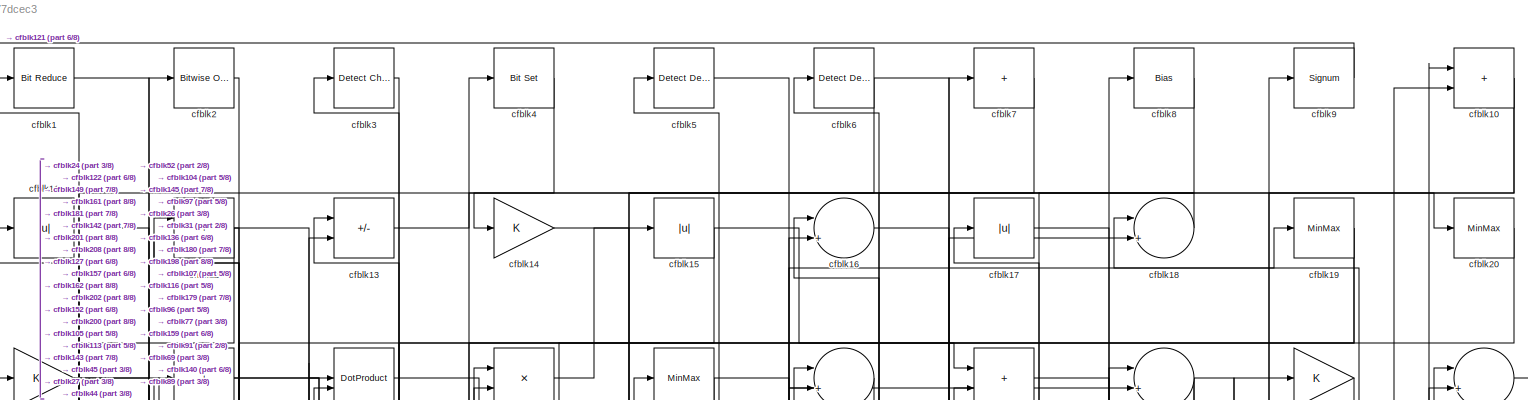
[diagram: root canvas - part 1/8, full width, top band]
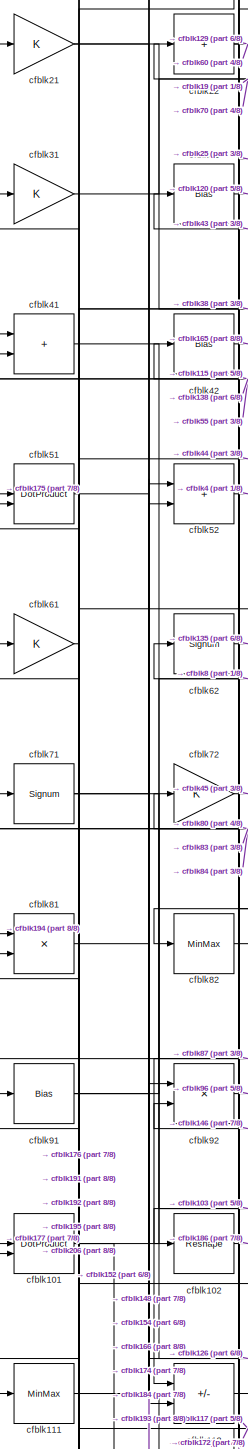
[diagram: root canvas - part 2/8, middle left region]
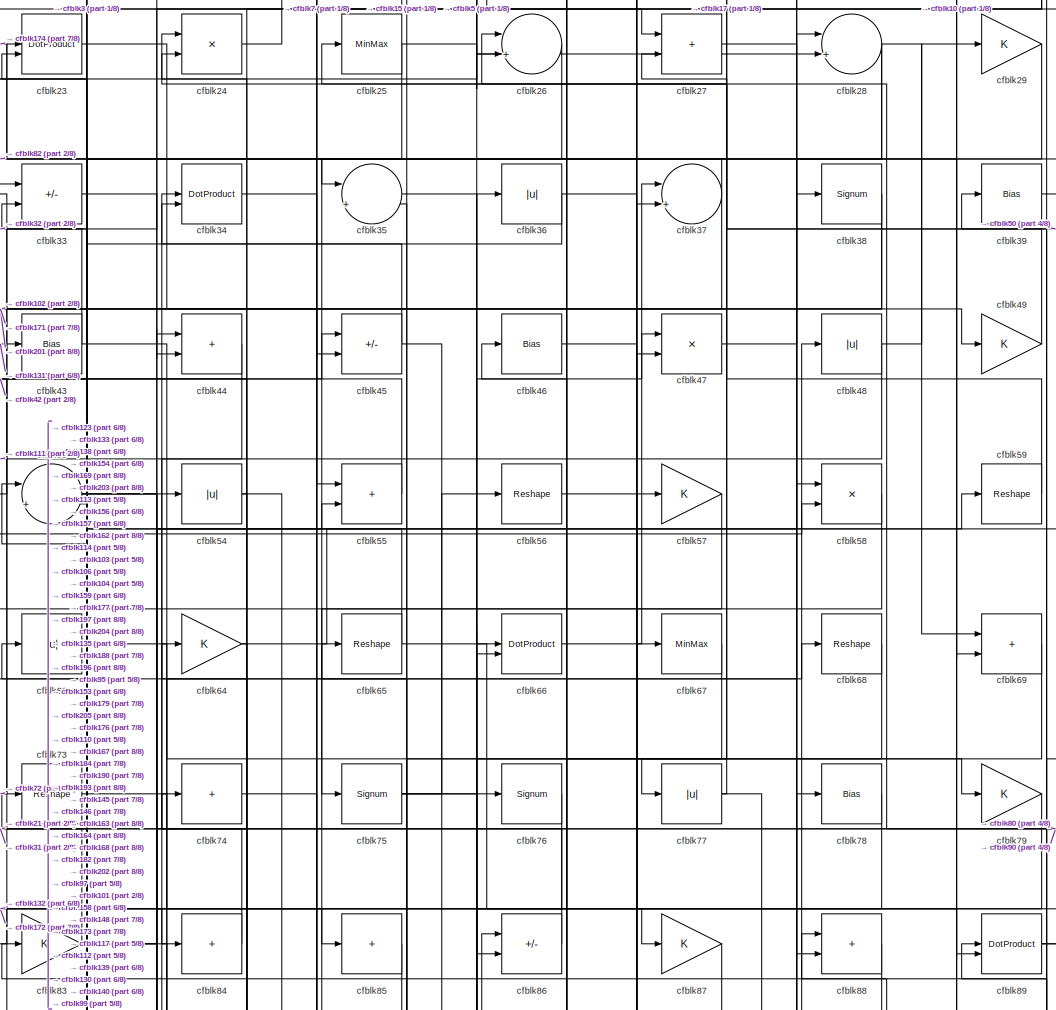
[diagram: root canvas - part 3/8, top center region]
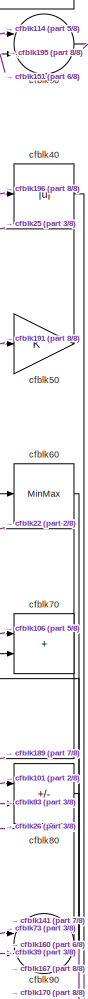
[diagram: root canvas - part 4/8, top right region]
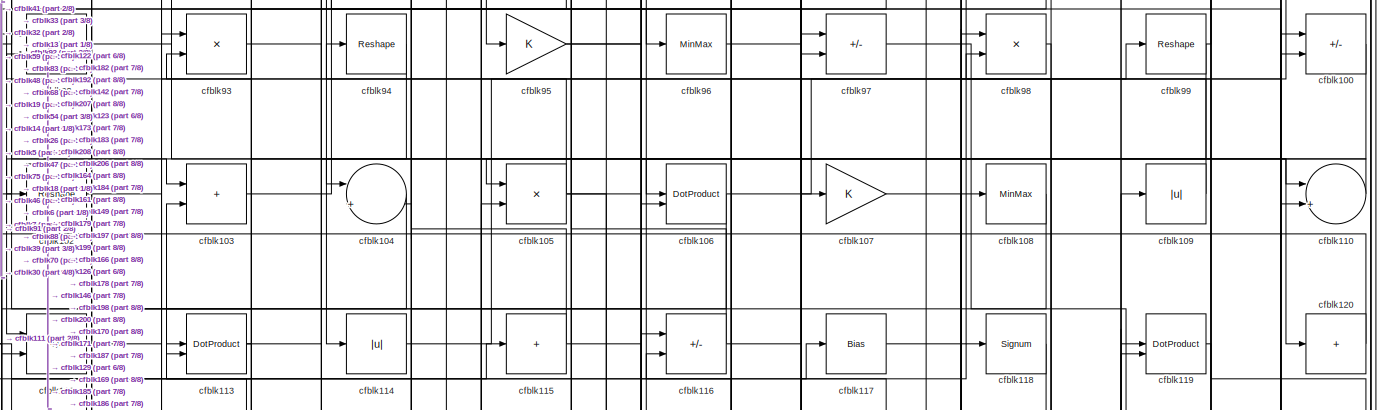
[diagram: root canvas - part 5/8, full width, middle band]
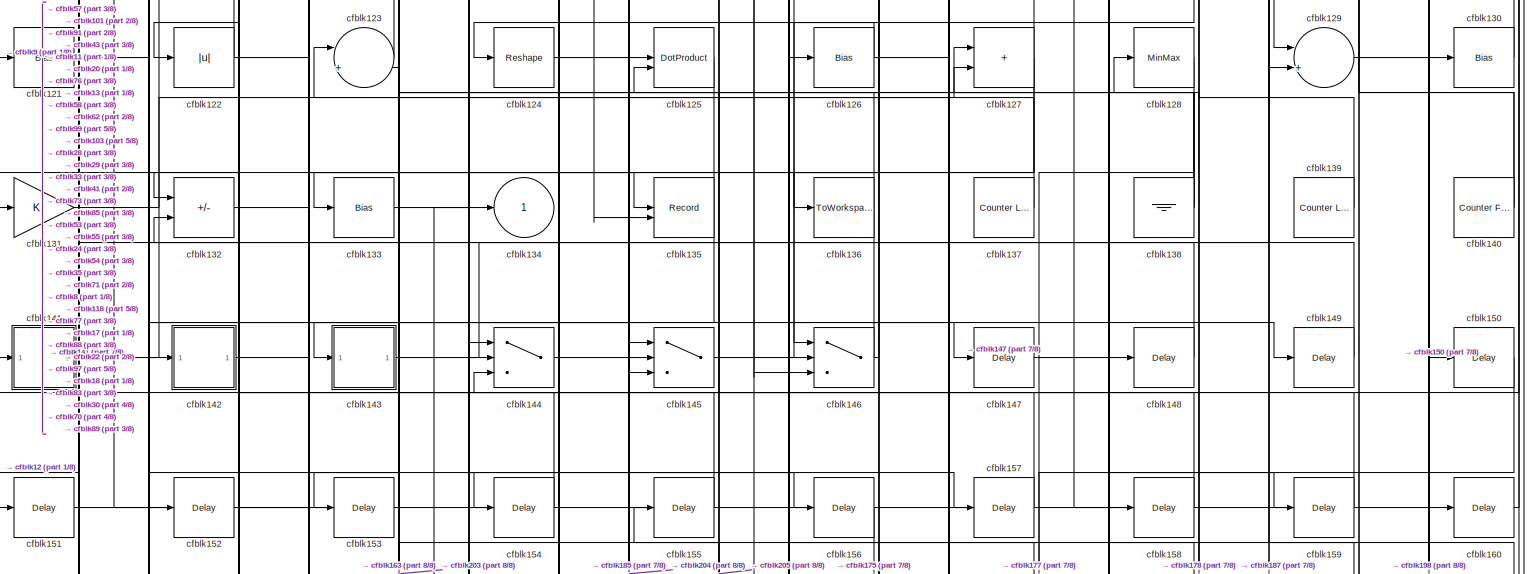
[diagram: root canvas - part 6/8, full width, bottom band]
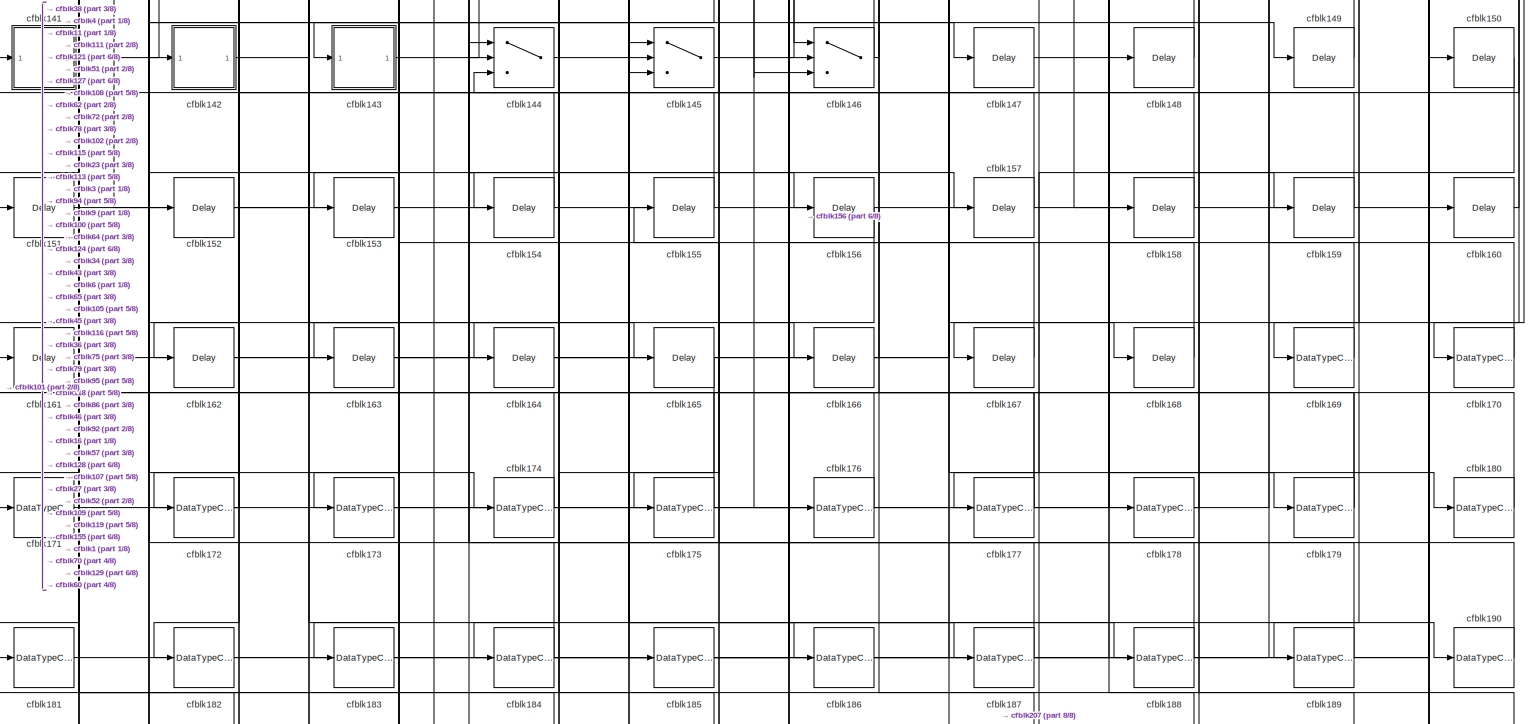
[diagram: root canvas - part 7/8, full width, bottom band]
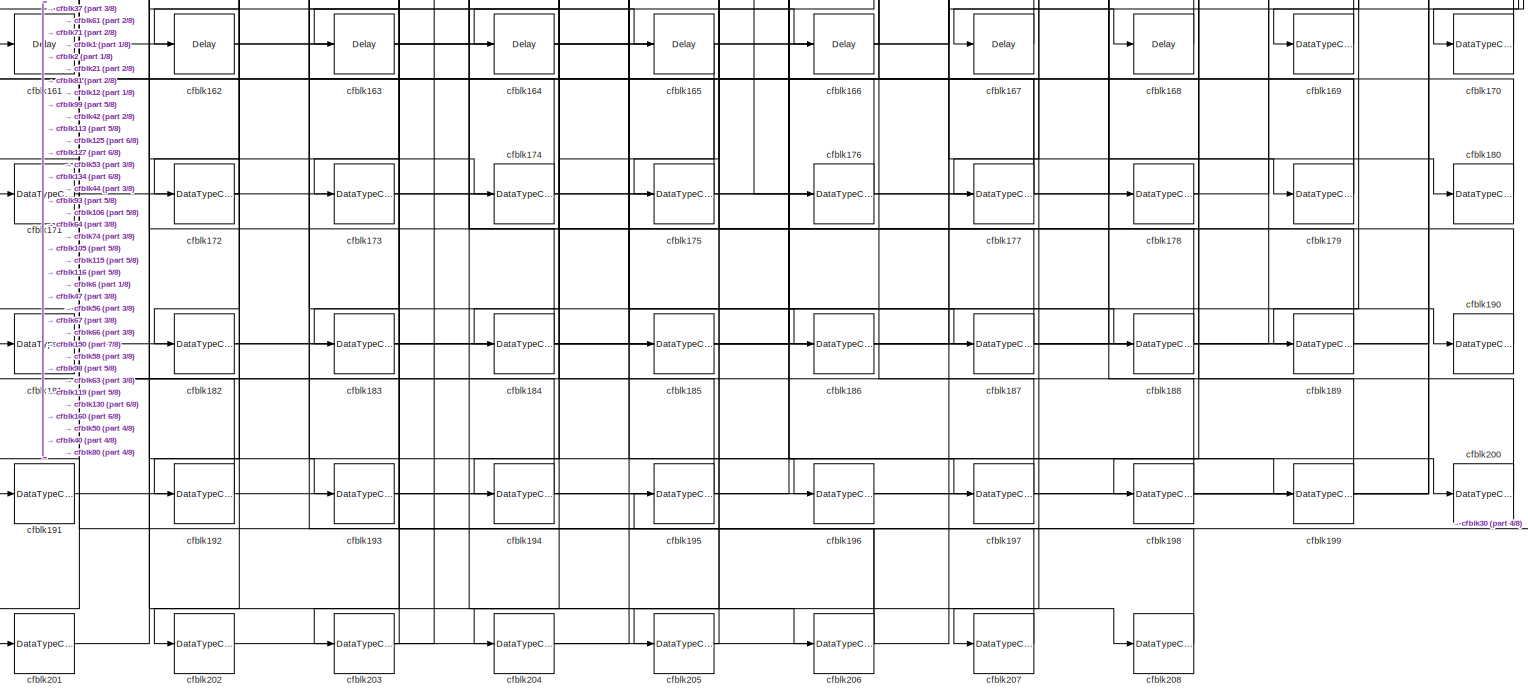
[diagram: root canvas - part 8/8, full width, bottom band]
MODEL slx_617a277dcec3
KIND model
CONFIG AbsTol = auto
CONFIG EnableMultiTasking = off
CONFIG FixedStep = auto
CONFIG MaxStep = auto
CONFIG MinStep = auto
CONFIG RelTol = 1e-3
CONFIG SampleTimeConstraint = Unconstrained
CONFIG SolverName = VariableStepAuto
CONFIG StartTime = 0.0
CONFIG StopTime = 10.0
BLOCK [Reference] cfblk1  REF=hdlsllib/Logic and Bit
Operations/Bit Reduce
  SourceBlock = hdlsllib/Logic and Bit\nOperations/Bit Reduce
  SourceType = Bit Reduce
BLOCK [Sum] cfblk10
  IconShape = rectangular
BLOCK [Sum] cfblk100
  IconShape = rectangular
  Inputs = +-
BLOCK [DotProduct] cfblk101
  OutDataTypeStr = Inherit: Inherit via internal rule
BLOCK [Reshape] cfblk102
BLOCK [Sum] cfblk103
  IconShape = rectangular
BLOCK [Sum] cfblk104
  Inputs = |++
BLOCK [Product] cfblk105
  Inputs = */
  RndMeth = Zero
  SaturateOnIntegerOverflow = on
BLOCK [DotProduct] cfblk106
  OutDataTypeStr = Inherit: Inherit via internal rule
BLOCK [Gain] cfblk107
BLOCK [MinMax] cfblk108
BLOCK [Abs] cfblk109
  SaturateOnIntegerOverflow = off
BLOCK [Abs] cfblk11
  SaturateOnIntegerOverflow = off
BLOCK [Sum] cfblk110
  Inputs = |++
BLOCK [MinMax] cfblk111
BLOCK [Sum] cfblk112
  IconShape = rectangular
  Inputs = +-
BLOCK [DotProduct] cfblk113
  OutDataTypeStr = Inherit: Inherit via internal rule
BLOCK [Abs] cfblk114
  SaturateOnIntegerOverflow = off
BLOCK [Sum] cfblk115
  IconShape = rectangular
  Inputs = +
BLOCK [Sum] cfblk116
  IconShape = rectangular
  Inputs = +-
BLOCK [Bias] cfblk117
  Bias = 0.0
  SaturateOnIntegerOverflow = off
BLOCK [Signum] cfblk118
BLOCK [DotProduct] cfblk119
  OutDataTypeStr = Inherit: Inherit via internal rule
BLOCK [Sum] cfblk12
  IconShape = rectangular
BLOCK [Sum] cfblk120
  IconShape = rectangular
  Inputs = +
BLOCK [Bias] cfblk121
  Bias = 0.0
  SaturateOnIntegerOverflow = off
BLOCK [Abs] cfblk122
  SaturateOnIntegerOverflow = off
BLOCK [Sum] cfblk123
  Inputs = |++
BLOCK [Reshape] cfblk124
BLOCK [DotProduct] cfblk125
  OutDataTypeStr = Inherit: Inherit via internal rule
BLOCK [Bias] cfblk126
  Bias = 0.0
  SaturateOnIntegerOverflow = off
BLOCK [Sum] cfblk127
  IconShape = rectangular
BLOCK [MinMax] cfblk128
BLOCK [Sum] cfblk129
  Inputs = |++
BLOCK [Sum] cfblk13
  IconShape = rectangular
  Inputs = +-
BLOCK [Bias] cfblk130
  Bias = 0.0
  SaturateOnIntegerOverflow = off
BLOCK [Gain] cfblk131
BLOCK [Sum] cfblk132
  IconShape = rectangular
  Inputs = +-
BLOCK [Bias] cfblk133
  Bias = 0.0
  SaturateOnIntegerOverflow = off
BLOCK [Outport] cfblk134
  VectorParamsAs1DForOutWhenUnconnected = off
BLOCK [Record] cfblk135
  CompatibilityTag = XY
  FileSettingsInternal = {"entries":[{"content":{"excelSettings":{"content":{},"type":"Streamout.ExcelSettings"}},"type":"Streamout.FileSettingStorage","uuid":""}],"packageUris":["http:\/\/schema.mathworks.com\/mf0\/streamout_blocks\/R2020a"],"version":"1.0"}
  Layout = [1 1]
  SignalsInternal = {"entries":[{"content":{"signals":[{"content":{"blockPath":[],"dimensions":[1],"domain":"","lineColor":"#a2142f","plots":[1],"port":1,"signalID":6285,"signalName":"XY Graph:1"},"type":"RecordBlkView.Signal","uuid":""},{"content":{"blockPath":[],"dimensions":[1],"domain":"","lineColor":"#139fff","plots":[1],"port":2,"signalID":6288,"signalName":"XY Graph:2"},"type":"RecordBlkView.Signal","uuid":""}...<+146ch>
  VisualizationBindings = {"xyplotplugin":{"info":[{"series":[{"bindingParametersList":[{"parameter":"X-Axis","signalID":6285,"signalName":"XY Graph:1"},{"parameter":"Y-Axis","signalID":6288,"signalName":"XY Graph:2"}],"seriesID":30765}],"subplotID":1}]}}
  st = -1
BLOCK [ToWorkspace] cfblk136
  MaxDataPoints = inf
  SampleTime = -1
  SaveFormat = Timeseries
  VariableName = simout
BLOCK [Reference] cfblk137  REF=hdlsllib/Sources/Counter
Limited
  SourceBlock = hdlsllib/Sources/Counter\nLimited
  SourceType = Counter Limited
BLOCK [Ground] cfblk138
BLOCK [Reference] cfblk139  REF=hdlsllib/Sources/Counter
Limited
  SourceBlock = hdlsllib/Sources/Counter\nLimited
  SourceType = Counter Limited
BLOCK [Gain] cfblk14
BLOCK [Reference] cfblk140  REF=hdlsllib/Sources/Counter
Free-Running
  SourceBlock = hdlsllib/Sources/Counter\nFree-Running
  SourceType = Counter Free-Running
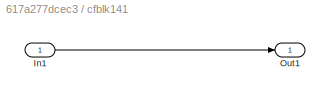
BLOCK [SubSystem] cfblk141
  LibrarySourceBlock = hdlsllib/Ports &\nSubsystems/Subsystem
BLOCK [Inport] cfblk141/In1
BLOCK [Outport] cfblk141/Out1
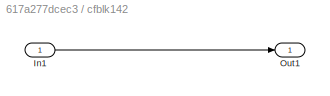
BLOCK [SubSystem] cfblk142
  LibrarySourceBlock = hdlsllib/Ports &\nSubsystems/Subsystem
BLOCK [Inport] cfblk142/In1
BLOCK [Outport] cfblk142/Out1
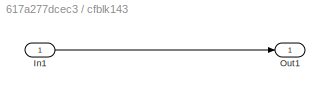
BLOCK [SubSystem] cfblk143
  LibrarySourceBlock = hdlsllib/Ports &\nSubsystems/Subsystem
BLOCK [Inport] cfblk143/In1
BLOCK [Outport] cfblk143/Out1
BLOCK [Switch] cfblk144
  InputSameDT = off
  SaturateOnIntegerOverflow = off
BLOCK [Switch] cfblk145
  InputSameDT = off
  SaturateOnIntegerOverflow = off
BLOCK [Switch] cfblk146
  InputSameDT = off
  SaturateOnIntegerOverflow = off
BLOCK [Delay] cfblk147
  InputPortMap = u0
  SampleTime = 1
BLOCK [Delay] cfblk148
  InputPortMap = u0
  SampleTime = 1
BLOCK [Delay] cfblk149
  InputPortMap = u0
  SampleTime = 1
BLOCK [Abs] cfblk15
  SaturateOnIntegerOverflow = off
BLOCK [Delay] cfblk150
  InputPortMap = u0
  SampleTime = 1
BLOCK [Delay] cfblk151
  InputPortMap = u0
  SampleTime = 1
BLOCK [Delay] cfblk152
  InputPortMap = u0
  SampleTime = 1
BLOCK [Delay] cfblk153
  InputPortMap = u0
  SampleTime = 1
BLOCK [Delay] cfblk154
  InputPortMap = u0
  SampleTime = 1
BLOCK [Delay] cfblk155
  InputPortMap = u0
  SampleTime = 1
BLOCK [Delay] cfblk156
  InputPortMap = u0
  SampleTime = 1
BLOCK [Delay] cfblk157
  InputPortMap = u0
  SampleTime = 1
BLOCK [Delay] cfblk158
  InputPortMap = u0
  SampleTime = 1
BLOCK [Delay] cfblk159
  InputPortMap = u0
  SampleTime = 1
BLOCK [Sum] cfblk16
  Inputs = |++
BLOCK [Delay] cfblk160
  InputPortMap = u0
  SampleTime = 1
BLOCK [Delay] cfblk161
  InputPortMap = u0
  SampleTime = 1
BLOCK [Delay] cfblk162
  InputPortMap = u0
  SampleTime = 1
BLOCK [Delay] cfblk163
  InputPortMap = u0
  SampleTime = 1
BLOCK [Delay] cfblk164
  InputPortMap = u0
  SampleTime = 1
BLOCK [Delay] cfblk165
  InputPortMap = u0
  SampleTime = 1
BLOCK [Delay] cfblk166
  InputPortMap = u0
  SampleTime = 1
BLOCK [Delay] cfblk167
  InputPortMap = u0
  SampleTime = 1
BLOCK [Delay] cfblk168
  InputPortMap = u0
  SampleTime = 1
BLOCK [DataTypeConversion] cfblk169
  OutDataTypeStr = uint8
  RndMeth = Floor
  SaturateOnIntegerOverflow = off
BLOCK [Abs] cfblk17
  SaturateOnIntegerOverflow = off
BLOCK [DataTypeConversion] cfblk170
  OutDataTypeStr = uint8
  RndMeth = Floor
  SaturateOnIntegerOverflow = off
BLOCK [DataTypeConversion] cfblk171
  OutDataTypeStr = uint8
  RndMeth = Floor
  SaturateOnIntegerOverflow = off
BLOCK [DataTypeConversion] cfblk172
  RndMeth = Floor
  SaturateOnIntegerOverflow = off
BLOCK [DataTypeConversion] cfblk173
  OutDataTypeStr = uint8
  RndMeth = Floor
  SaturateOnIntegerOverflow = off
BLOCK [DataTypeConversion] cfblk174
  OutDataTypeStr = uint8
  RndMeth = Floor
  SaturateOnIntegerOverflow = off
BLOCK [DataTypeConversion] cfblk175
  OutDataTypeStr = uint8
  RndMeth = Floor
  SaturateOnIntegerOverflow = off
BLOCK [DataTypeConversion] cfblk176
  OutDataTypeStr = uint8
  RndMeth = Floor
  SaturateOnIntegerOverflow = off
BLOCK [DataTypeConversion] cfblk177
  RndMeth = Floor
  SaturateOnIntegerOverflow = off
BLOCK [DataTypeConversion] cfblk178
  OutDataTypeStr = uint8
  RndMeth = Floor
  SaturateOnIntegerOverflow = off
BLOCK [DataTypeConversion] cfblk179
  RndMeth = Floor
  SaturateOnIntegerOverflow = off
BLOCK [Sum] cfblk18
  Inputs = |++
BLOCK [DataTypeConversion] cfblk180
  OutDataTypeStr = uint8
  RndMeth = Floor
  SaturateOnIntegerOverflow = off
BLOCK [DataTypeConversion] cfblk181
  OutDataTypeStr = uint8
  RndMeth = Floor
  SaturateOnIntegerOverflow = off
BLOCK [DataTypeConversion] cfblk182
  OutDataTypeStr = uint8
  RndMeth = Floor
  SaturateOnIntegerOverflow = off
BLOCK [DataTypeConversion] cfblk183
  OutDataTypeStr = uint8
  RndMeth = Floor
  SaturateOnIntegerOverflow = off
BLOCK [DataTypeConversion] cfblk184
  RndMeth = Floor
  SaturateOnIntegerOverflow = off
BLOCK [DataTypeConversion] cfblk185
  OutDataTypeStr = uint8
  RndMeth = Floor
  SaturateOnIntegerOverflow = off
BLOCK [DataTypeConversion] cfblk186
  OutDataTypeStr = uint8
  RndMeth = Floor
  SaturateOnIntegerOverflow = off
BLOCK [DataTypeConversion] cfblk187
  RndMeth = Floor
  SaturateOnIntegerOverflow = off
BLOCK [DataTypeConversion] cfblk188
  OutDataTypeStr = uint8
  RndMeth = Floor
  SaturateOnIntegerOverflow = off
BLOCK [DataTypeConversion] cfblk189
  OutDataTypeStr = uint8
  RndMeth = Floor
  SaturateOnIntegerOverflow = off
BLOCK [MinMax] cfblk19
BLOCK [DataTypeConversion] cfblk190
  OutDataTypeStr = uint8
  RndMeth = Floor
  SaturateOnIntegerOverflow = off
BLOCK [DataTypeConversion] cfblk191
  OutDataTypeStr = uint8
  RndMeth = Floor
  SaturateOnIntegerOverflow = off
BLOCK [DataTypeConversion] cfblk192
  OutDataTypeStr = uint8
  RndMeth = Floor
  SaturateOnIntegerOverflow = off
BLOCK [DataTypeConversion] cfblk193
  OutDataTypeStr = uint8
  RndMeth = Floor
  SaturateOnIntegerOverflow = off
BLOCK [DataTypeConversion] cfblk194
  OutDataTypeStr = uint8
  RndMeth = Floor
  SaturateOnIntegerOverflow = off
BLOCK [DataTypeConversion] cfblk195
  OutDataTypeStr = uint8
  RndMeth = Floor
  SaturateOnIntegerOverflow = off
BLOCK [DataTypeConversion] cfblk196
  OutDataTypeStr = uint8
  RndMeth = Floor
  SaturateOnIntegerOverflow = off
BLOCK [DataTypeConversion] cfblk197
  OutDataTypeStr = uint8
  RndMeth = Floor
  SaturateOnIntegerOverflow = off
BLOCK [DataTypeConversion] cfblk198
  RndMeth = Floor
  SaturateOnIntegerOverflow = off
BLOCK [DataTypeConversion] cfblk199
  OutDataTypeStr = uint8
  RndMeth = Floor
  SaturateOnIntegerOverflow = off
BLOCK [Reference] cfblk2  REF=simulink/Logic and Bit
Operations/Bitwise
Operator
  LibrarySourceBlock = hdlsllib/Logic and Bit\nOperations/Bitwise\nOperator
  SourceBlock = simulink/Logic and Bit\nOperations/Bitwise\nOperator
  SourceType = Bitwise Operator
BLOCK [MinMax] cfblk20
BLOCK [DataTypeConversion] cfblk200
  OutDataTypeStr = uint8
  RndMeth = Floor
  SaturateOnIntegerOverflow = off
BLOCK [DataTypeConversion] cfblk201
  OutDataTypeStr = boolean
  RndMeth = Floor
  SaturateOnIntegerOverflow = off
BLOCK [DataTypeConversion] cfblk202
  OutDataTypeStr = uint8
  RndMeth = Floor
  SaturateOnIntegerOverflow = off
BLOCK [DataTypeConversion] cfblk203
  RndMeth = Floor
  SaturateOnIntegerOverflow = off
BLOCK [DataTypeConversion] cfblk204
  OutDataTypeStr = uint8
  RndMeth = Floor
  SaturateOnIntegerOverflow = off
BLOCK [DataTypeConversion] cfblk205
  OutDataTypeStr = uint8
  RndMeth = Floor
  SaturateOnIntegerOverflow = off
BLOCK [DataTypeConversion] cfblk206
  RndMeth = Floor
  SaturateOnIntegerOverflow = off
BLOCK [DataTypeConversion] cfblk207
  OutDataTypeStr = uint8
  RndMeth = Floor
  SaturateOnIntegerOverflow = off
BLOCK [DataTypeConversion] cfblk208
  OutDataTypeStr = uint8
  RndMeth = Floor
  SaturateOnIntegerOverflow = off
BLOCK [Gain] cfblk21
BLOCK [Sum] cfblk22
  IconShape = rectangular
  Inputs = +
BLOCK [DotProduct] cfblk23
  OutDataTypeStr = Inherit: Inherit via internal rule
BLOCK [Product] cfblk24
  Inputs = */
  RndMeth = Zero
  SaturateOnIntegerOverflow = on
BLOCK [MinMax] cfblk25
BLOCK [Sum] cfblk26
  Inputs = |++
BLOCK [Sum] cfblk27
  IconShape = rectangular
BLOCK [Sum] cfblk28
  Inputs = |++
BLOCK [Gain] cfblk29
BLOCK [Reference] cfblk3  REF=simulink/Logic and Bit
Operations/Detect
Change
  LibrarySourceBlock = hdlsllib/Logic and Bit\nOperations/Detect\nChange
  SourceBlock = simulink/Logic and Bit\nOperations/Detect\nChange
  SourceType = Detect Change
BLOCK [Sum] cfblk30
  Inputs = |++
BLOCK [Gain] cfblk31
BLOCK [Bias] cfblk32
  Bias = 0.0
  SaturateOnIntegerOverflow = off
BLOCK [Sum] cfblk33
  IconShape = rectangular
  Inputs = +-
BLOCK [DotProduct] cfblk34
  OutDataTypeStr = Inherit: Inherit via internal rule
BLOCK [Sum] cfblk35
  Inputs = |++
BLOCK [Abs] cfblk36
  SaturateOnIntegerOverflow = off
BLOCK [Sum] cfblk37
  Inputs = |++
BLOCK [Signum] cfblk38
BLOCK [Bias] cfblk39
  Bias = 0.0
  SaturateOnIntegerOverflow = off
BLOCK [Reference] cfblk4  REF=simulink/Logic and Bit
Operations/Bit Set
  LibrarySourceBlock = hdlsllib/Logic and Bit\nOperations/Bit Set
  SourceBlock = simulink/Logic and Bit\nOperations/Bit Set
  SourceType = Bit Set
BLOCK [Abs] cfblk40
  SaturateOnIntegerOverflow = off
BLOCK [Sum] cfblk41
  IconShape = rectangular
BLOCK [Bias] cfblk42
  Bias = 0.0
  SaturateOnIntegerOverflow = off
BLOCK [Bias] cfblk43
  Bias = 0.0
  SaturateOnIntegerOverflow = off
BLOCK [Sum] cfblk44
  IconShape = rectangular
BLOCK [Sum] cfblk45
  IconShape = rectangular
  Inputs = +-
BLOCK [Bias] cfblk46
  Bias = 0.0
  SaturateOnIntegerOverflow = off
BLOCK [Product] cfblk47
  Inputs = */
  RndMeth = Zero
  SaturateOnIntegerOverflow = on
BLOCK [Abs] cfblk48
  SaturateOnIntegerOverflow = off
BLOCK [Gain] cfblk49
BLOCK [Reference] cfblk5  REF=simulink/Logic and Bit
Operations/Detect
Decrease
  LibrarySourceBlock = hdlsllib/Logic and Bit\nOperations/Detect\nDecrease
  SourceBlock = simulink/Logic and Bit\nOperations/Detect\nDecrease
  SourceType = Detect Decrease
BLOCK [Gain] cfblk50
BLOCK [DotProduct] cfblk51
  OutDataTypeStr = Inherit: Inherit via internal rule
BLOCK [Sum] cfblk52
  IconShape = rectangular
BLOCK [Sum] cfblk53
  Inputs = |++
BLOCK [Abs] cfblk54
  SaturateOnIntegerOverflow = off
BLOCK [Sum] cfblk55
  IconShape = rectangular
BLOCK [Reshape] cfblk56
BLOCK [Gain] cfblk57
BLOCK [Product] cfblk58
  Inputs = */
  RndMeth = Zero
  SaturateOnIntegerOverflow = on
BLOCK [Reshape] cfblk59
BLOCK [Reference] cfblk6  REF=simulink/Logic and Bit
Operations/Detect
Decrease
  LibrarySourceBlock = hdlsllib/Logic and Bit\nOperations/Detect\nDecrease
  SourceBlock = simulink/Logic and Bit\nOperations/Detect\nDecrease
  SourceType = Detect Decrease
BLOCK [MinMax] cfblk60
BLOCK [Gain] cfblk61
BLOCK [Signum] cfblk62
BLOCK [Abs] cfblk63
  SaturateOnIntegerOverflow = off
BLOCK [Gain] cfblk64
BLOCK [Reshape] cfblk65
BLOCK [DotProduct] cfblk66
  OutDataTypeStr = Inherit: Inherit via internal rule
BLOCK [MinMax] cfblk67
BLOCK [Reshape] cfblk68
BLOCK [Sum] cfblk69
  IconShape = rectangular
BLOCK [Sum] cfblk7
  IconShape = rectangular
  Inputs = +
BLOCK [Sum] cfblk70
  IconShape = rectangular
BLOCK [Signum] cfblk71
BLOCK [Gain] cfblk72
BLOCK [Reshape] cfblk73
BLOCK [Sum] cfblk74
  IconShape = rectangular
  Inputs = +
BLOCK [Signum] cfblk75
BLOCK [Signum] cfblk76
BLOCK [Abs] cfblk77
  SaturateOnIntegerOverflow = off
BLOCK [Bias] cfblk78
  Bias = 0.0
  SaturateOnIntegerOverflow = off
BLOCK [Gain] cfblk79
BLOCK [Bias] cfblk8
  Bias = 0.0
  SaturateOnIntegerOverflow = off
BLOCK [Sum] cfblk80
  IconShape = rectangular
  Inputs = +-
BLOCK [Product] cfblk81
  Inputs = */
  RndMeth = Zero
  SaturateOnIntegerOverflow = on
BLOCK [MinMax] cfblk82
BLOCK [Gain] cfblk83
BLOCK [Sum] cfblk84
  IconShape = rectangular
  Inputs = +
BLOCK [Sum] cfblk85
  IconShape = rectangular
  Inputs = +
BLOCK [Sum] cfblk86
  IconShape = rectangular
  Inputs = +-
BLOCK [Gain] cfblk87
BLOCK [Sum] cfblk88
  IconShape = rectangular
BLOCK [DotProduct] cfblk89
  OutDataTypeStr = Inherit: Inherit via internal rule
BLOCK [Signum] cfblk9
BLOCK [Sum] cfblk90
  Inputs = |++
BLOCK [Bias] cfblk91
  Bias = 0.0
  SaturateOnIntegerOverflow = off
BLOCK [Product] cfblk92
  Inputs = */
  RndMeth = Zero
  SaturateOnIntegerOverflow = on
BLOCK [Product] cfblk93
  Inputs = */
  RndMeth = Zero
  SaturateOnIntegerOverflow = on
BLOCK [Reshape] cfblk94
BLOCK [Gain] cfblk95
BLOCK [MinMax] cfblk96
BLOCK [Sum] cfblk97
  IconShape = rectangular
  Inputs = +-
BLOCK [Product] cfblk98
  Inputs = */
  RndMeth = Zero
  SaturateOnIntegerOverflow = on
BLOCK [Reshape] cfblk99
LINE cfblk100:1 -> cfblk184:1
NET cfblk101:1 -> cfblk152:1, cfblk80:1
LINE cfblk102:1 -> cfblk186:1
LINE cfblk103:1 -> cfblk68:1
LINE cfblk104:1 -> cfblk112:2
NET cfblk105:1 -> cfblk13:1, cfblk146:3, cfblk197:1
NET cfblk106:1 -> cfblk164:1, cfblk70:1
LINE cfblk107:1 -> cfblk178:1
LINE cfblk108:1 -> cfblk182:1
LINE cfblk109:1 -> cfblk94:1
NET cfblk10:1 -> cfblk69:2, cfblk77:1
LINE cfblk110:1 -> cfblk105:1
NET cfblk111:1 -> cfblk117:1, cfblk145:2
LINE cfblk112:1 -> cfblk33:1
NET cfblk113:1 -> cfblk173:1, cfblk59:1
LINE cfblk114:1 -> cfblk30:1
NET cfblk115:1 -> cfblk199:1, cfblk41:1
NET cfblk116:1 -> cfblk5:1, cfblk7:1
LINE cfblk117:1 -> cfblk48:1
LINE cfblk118:1 -> cfblk146:1
LINE cfblk119:1 -> cfblk169:1
LINE cfblk11:1 -> cfblk142:1
LINE cfblk120:1 -> cfblk91:1
LINE cfblk121:1 -> cfblk147:1
NET cfblk122:1 -> cfblk11:1, cfblk99:1
LINE cfblk123:1 -> cfblk103:2
LINE cfblk124:1 -> cfblk185:1
LINE cfblk125:1 -> cfblk203:1
NET cfblk126:1 -> cfblk118:1, cfblk124:1
NET cfblk127:1 -> cfblk12:1, cfblk151:1, cfblk163:1
LINE cfblk128:1 -> cfblk177:1
LINE cfblk129:1 -> cfblk150:1
NET cfblk12:1 -> cfblk161:1, cfblk162:1, cfblk200:1
LINE cfblk130:1 -> cfblk89:1
LINE cfblk131:1 -> cfblk43:1
LINE cfblk132:1 -> cfblk58:2
LINE cfblk133:1 -> cfblk55:2
LINE cfblk137:1 -> cfblk123:1
NET cfblk138:1 -> cfblk127:2, cfblk41:2, cfblk73:1
LINE cfblk139:1 -> cfblk88:1
LINE cfblk13:1 -> cfblk20:1
NET cfblk140:1 -> cfblk18:1, cfblk83:1
LINE cfblk141/In1:1 -> cfblk141/Out1:1
LINE cfblk141:1 -> cfblk127:1
LINE cfblk142/In1:1 -> cfblk142/Out1:1
LINE cfblk142:1 -> cfblk115:1
LINE cfblk143/In1:1 -> cfblk143/Out1:1
LINE cfblk143:1 -> cfblk9:1
LINE cfblk144:1 -> cfblk187:1
LINE cfblk145:1 -> cfblk86:1
NET cfblk146:1 -> cfblk46:1, cfblk92:2
LINE cfblk147:1 -> cfblk180:1
LINE cfblk148:1 -> cfblk52:1
LINE cfblk149:1 -> cfblk1:1
LINE cfblk14:1 -> cfblk97:2
LINE cfblk150:1 -> cfblk207:1
LINE cfblk151:1 -> cfblk30:2
LINE cfblk152:1 -> cfblk13:2
LINE cfblk153:1 -> cfblk33:2
LINE cfblk154:1 -> cfblk53:1
LINE cfblk155:1 -> cfblk132:2
LINE cfblk156:1 -> cfblk175:1
LINE cfblk157:1 -> cfblk12:2
LINE cfblk158:1 -> cfblk35:2
LINE cfblk159:1 -> cfblk24:2
NET cfblk15:1 -> cfblk27:1, cfblk44:2
LINE cfblk160:1 -> cfblk70:2
LINE cfblk161:1 -> cfblk105:2
LINE cfblk162:1 -> cfblk44:1
LINE cfblk163:1 -> cfblk37:2
LINE cfblk164:1 -> cfblk47:2
LINE cfblk165:1 -> cfblk194:1
LINE cfblk166:1 -> cfblk116:2
LINE cfblk167:1 -> cfblk66:1
LINE cfblk168:1 -> cfblk58:1
LINE cfblk169:1 -> cfblk63:1
LINE cfblk16:1 -> cfblk179:1
LINE cfblk170:1 -> cfblk119:1
LINE cfblk171:1 -> cfblk119:2
NET cfblk172:1 -> cfblk62:1, cfblk72:1
LINE cfblk173:1 -> cfblk78:1
LINE cfblk174:1 -> cfblk23:1
LINE cfblk175:1 -> cfblk51:1
LINE cfblk176:1 -> cfblk51:2
NET cfblk177:1 -> cfblk101:1, cfblk64:1
LINE cfblk178:1 -> cfblk128:1
NET cfblk179:1 -> cfblk116:1, cfblk65:1
LINE cfblk17:1 -> cfblk159:1
LINE cfblk180:1 -> cfblk16:1
LINE cfblk181:1 -> cfblk16:2
LINE cfblk182:1 -> cfblk57:1
LINE cfblk183:1 -> cfblk108:1
NET cfblk184:1 -> cfblk36:1, cfblk92:1
LINE cfblk185:1 -> cfblk100:1
LINE cfblk186:1 -> cfblk100:2
NET cfblk187:1 -> cfblk109:1, cfblk155:1
LINE cfblk188:1 -> cfblk144:1
LINE cfblk189:1 -> cfblk144:2
LINE cfblk18:1 -> cfblk14:1
LINE cfblk190:1 -> cfblk144:3
LINE cfblk191:1 -> cfblk50:1
LINE cfblk192:1 -> cfblk61:1
LINE cfblk193:1 -> cfblk66:2
LINE cfblk194:1 -> cfblk81:1
LINE cfblk195:1 -> cfblk81:2
LINE cfblk196:1 -> cfblk40:1
LINE cfblk197:1 -> cfblk74:1
NET cfblk198:1 -> cfblk130:1, cfblk160:1, cfblk6:1
LINE cfblk199:1 -> cfblk98:1
NET cfblk19:1 -> cfblk104:2, cfblk113:1
LINE cfblk1:1 -> cfblk208:1
LINE cfblk200:1 -> cfblk98:2
LINE cfblk201:1 -> cfblk2:1
LINE cfblk202:1 -> cfblk67:1
NET cfblk203:1 -> cfblk134:1, cfblk53:2
LINE cfblk204:1 -> cfblk125:1
LINE cfblk205:1 -> cfblk125:2
NET cfblk206:1 -> cfblk113:2, cfblk71:1
LINE cfblk207:1 -> cfblk93:1
LINE cfblk208:1 -> cfblk93:2
LINE cfblk20:1 -> cfblk122:1
NET cfblk21:1 -> cfblk166:1, cfblk55:1
NET cfblk22:1 -> cfblk129:2, cfblk60:1
LINE cfblk23:1 -> cfblk49:1
LINE cfblk24:1 -> cfblk15:1
NET cfblk25:1 -> cfblk28:2, cfblk82:1
LINE cfblk26:1 -> cfblk95:1
LINE cfblk27:1 -> cfblk148:1
NET cfblk28:1 -> cfblk123:2, cfblk69:1, cfblk88:2
LINE cfblk29:1 -> cfblk133:1
LINE cfblk2:1 -> cfblk202:1
LINE cfblk30:1 -> cfblk195:1
LINE cfblk31:1 -> cfblk19:1
LINE cfblk32:1 -> cfblk120:1
LINE cfblk33:1 -> cfblk85:1
LINE cfblk34:1 -> cfblk188:1
LINE cfblk35:1 -> cfblk76:1
NET cfblk36:1 -> cfblk34:2, cfblk89:2
NET cfblk37:1 -> cfblk201:1, cfblk35:1
NET cfblk38:1 -> cfblk102:1, cfblk171:1
LINE cfblk39:1 -> cfblk90:2
LINE cfblk3:1 -> cfblk143:1
LINE cfblk40:1 -> cfblk167:1
LINE cfblk41:1 -> cfblk103:1
LINE cfblk42:1 -> cfblk165:1
NET cfblk43:1 -> cfblk145:1, cfblk32:1
LINE cfblk44:1 -> cfblk111:1
NET cfblk45:1 -> cfblk176:1, cfblk3:1
LINE cfblk46:1 -> cfblk97:1
LINE cfblk47:1 -> cfblk28:1
NET cfblk48:1 -> cfblk114:1, cfblk29:1
LINE cfblk49:1 -> cfblk24:1
LINE cfblk4:1 -> cfblk181:1
LINE cfblk50:1 -> cfblk25:1
LINE cfblk51:1 -> cfblk174:1
LINE cfblk52:1 -> cfblk4:1
NET cfblk53:1 -> cfblk156:1, cfblk157:1, cfblk34:1
NET cfblk54:1 -> cfblk104:1, cfblk135:2
LINE cfblk55:1 -> cfblk42:1
LINE cfblk56:1 -> cfblk168:1
LINE cfblk57:1 -> cfblk131:1
LINE cfblk58:1 -> cfblk75:1
LINE cfblk59:1 -> cfblk27:2
LINE cfblk5:1 -> cfblk26:2
LINE cfblk60:1 -> cfblk141:1
LINE cfblk61:1 -> cfblk191:1
LINE cfblk62:1 -> cfblk135:1
LINE cfblk63:1 -> cfblk79:1
NET cfblk64:1 -> cfblk204:1, cfblk38:1
NET cfblk65:1 -> cfblk23:2, cfblk87:1
LINE cfblk66:1 -> cfblk37:1
LINE cfblk67:1 -> cfblk205:1
LINE cfblk68:1 -> cfblk106:1
LINE cfblk69:1 -> cfblk86:2
NET cfblk6:1 -> cfblk107:1, cfblk145:3
NET cfblk70:1 -> cfblk189:1, cfblk22:1
NET cfblk71:1 -> cfblk126:1, cfblk52:2
LINE cfblk72:1 -> cfblk45:1
LINE cfblk73:1 -> cfblk90:1
LINE cfblk74:1 -> cfblk196:1
NET cfblk75:1 -> cfblk110:1, cfblk190:1, cfblk56:1
LINE cfblk76:1 -> cfblk132:1
NET cfblk77:1 -> cfblk158:1, cfblk17:1
LINE cfblk78:1 -> cfblk172:1
LINE cfblk79:1 -> cfblk146:2
LINE cfblk7:1 -> cfblk45:2
LINE cfblk80:1 -> cfblk170:1
LINE cfblk81:1 -> cfblk193:1
LINE cfblk82:1 -> cfblk84:1
NET cfblk83:1 -> cfblk106:2, cfblk110:2, cfblk31:1, cfblk80:2
LINE cfblk84:1 -> cfblk21:1
LINE cfblk85:1 -> cfblk153:1
LINE cfblk86:1 -> cfblk54:1
LINE cfblk87:1 -> cfblk101:2
LINE cfblk88:1 -> cfblk112:1
NET cfblk89:1 -> cfblk10:1, cfblk10:2
LINE cfblk8:1 -> cfblk136:1
LINE cfblk90:1 -> cfblk26:1
NET cfblk91:1 -> cfblk154:1, cfblk8:1
LINE cfblk92:1 -> cfblk96:1
LINE cfblk93:1 -> cfblk206:1
LINE cfblk94:1 -> cfblk183:1
NET cfblk95:1 -> cfblk149:1, cfblk47:1
LINE cfblk96:1 -> cfblk18:2
LINE cfblk97:1 -> cfblk129:1
LINE cfblk98:1 -> cfblk198:1
NET cfblk99:1 -> cfblk192:1, cfblk39:1
LINE cfblk9:1 -> cfblk121:1
note: NET lines group one-source signal fan-out (src -> all destinations, sorted); 1:1 wires keep LINE
